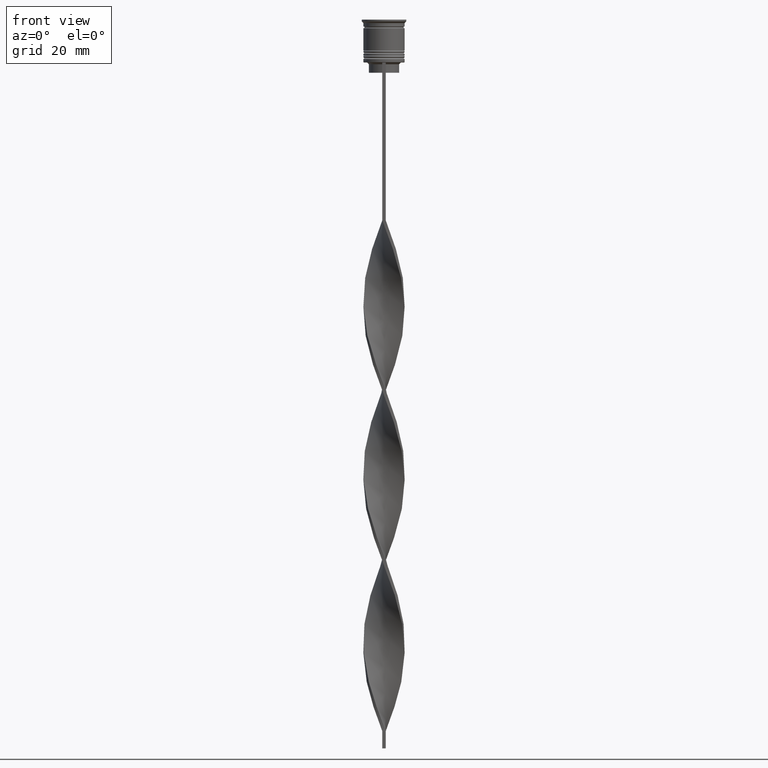
[diagram: clean part render]
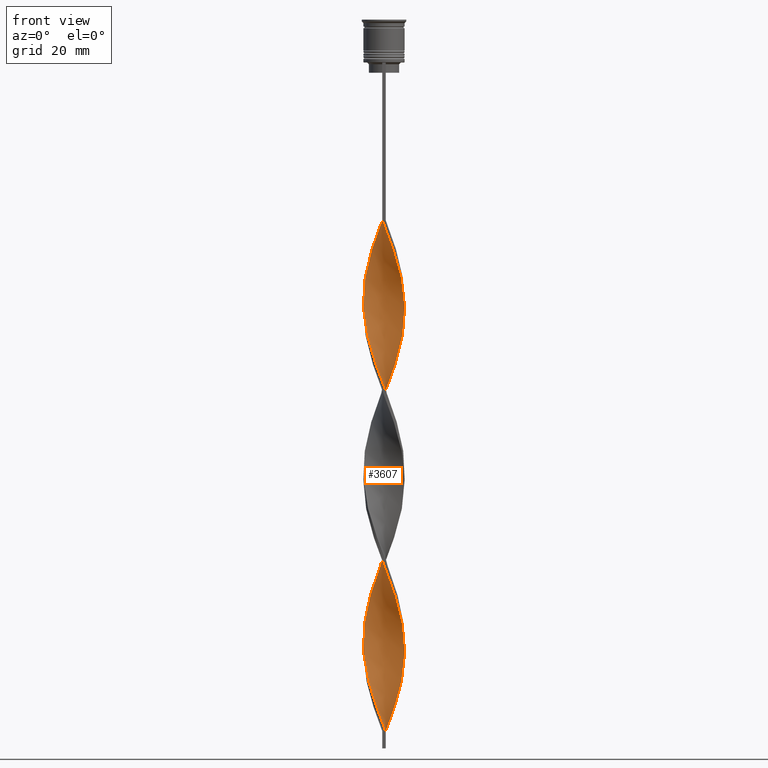
[diagram: same view with one face highlighted and labeled with its STEP entity id]
A machine part, front view. The second image highlights one B-rep face of the part: STEP entity #3607.
In plain terms, the highlighted face is a freeform B-spline surface patch.
Its self-contained STEP definition (entity closure, byte-faithful):
#9 = CARTESIAN_POINT ( 'NONE',  ( 5.089420681871065888, 3.216799204635418352, -192.8921568627450824 ) ) ;
#13 = CARTESIAN_POINT ( 'NONE',  ( -6.015373881509670007, 0.6136281867224266939, -80.41176470588234793 ) ) ;
#17 = CARTESIAN_POINT ( 'NONE',  ( 2.131985436030567893, 5.658259501511265555, -103.7843137254901933 ) ) ;
#25 = CARTESIAN_POINT ( 'NONE',  ( 5.593848926018643475, 2.226848488981698626, -189.9705882352941160 ) ) ;
#27 = CARTESIAN_POINT ( 'NONE',  ( -5.634122364000872629, -2.122890762018907029, -87.71568627450979250 ) ) ;
#30 = CARTESIAN_POINT ( 'NONE',  ( 4.411678320489673233, 4.097205681500676100, -96.48039215686274872 ) ) ;
#49 = CARTESIAN_POINT ( 'NONE',  ( -6.015373881509670007, -0.6136281867224278042, -135.9215686274509665 ) ) ;
#73 = CARTESIAN_POINT ( 'NONE',  ( 2.633686111825095377, 5.414212543332558525, -102.3235294117646959 ) ) ;
#89 = CARTESIAN_POINT ( 'NONE',  ( -4.032016302638260719, 4.506007880724164139, -68.72549019607842524 ) ) ;
#94 = CARTESIAN_POINT ( 'NONE',  ( -2.633686111825095821, -5.414212543332558525, -151.9901960784313530 ) ) ;
#96 = EDGE_LOOP ( 'NONE', ( #1922, #2255, #2614, #1376 ) ) ;
#109 = CARTESIAN_POINT ( 'NONE',  ( 5.437407565418680200, 2.644969083640990259, -138.8431372549019329 ) ) ;
#112 = CARTESIAN_POINT ( 'NONE',  ( 0.6110105570574714262, -5.989713357011694939, -61.42156862745097357 ) ) ;
#113 = CARTESIAN_POINT ( 'NONE',  ( 4.791340338341087524, 3.688403482277190282, -194.3529411764705799 ) ) ;
#128 = CARTESIAN_POINT ( 'NONE',  ( -4.858813575065529911, -3.599054477032530563, -191.4313725490196134 ) ) ;
#134 = CARTESIAN_POINT ( 'NONE',  ( 1.593983656741372767, 5.805963839195126042, -204.5784313725490335 ) ) ;
#152 = CARTESIAN_POINT ( 'NONE',  ( 5.800196826636242697, -1.708502050969749053, -127.1568627450980244 ) ) ;
#156 = CARTESIAN_POINT ( 'NONE',  ( 2.633686111825095377, 5.414212543332558525, -201.6568627450980387 ) ) ;
#170 = CARTESIAN_POINT ( 'NONE',  ( 5.593848926018644363, -2.226848488981697294, -125.6960784313725412 ) ) ;
#174 = CARTESIAN_POINT ( 'NONE',  ( 1.166039236662763656, -5.933094890902377294, -62.88235294117647101 ) ) ;
#175 = CARTESIAN_POINT ( 'NONE',  ( -3.583701545128941568, 4.838086732939006929, -67.26470588235292780 ) ) ;
#186 = CARTESIAN_POINT ( 'NONE',  ( 0.4999999999999990563, -6.000000000000000000, -108.1666666666666572 ) ) ;
#189 = CARTESIAN_POINT ( 'NONE',  ( -2.633686111825095821, -5.414212543332558525, -151.9901960784313530 ) ) ;
#191 = CARTESIAN_POINT ( 'NONE',  ( 4.032016302638259830, -4.506007880724165027, -118.3921568627451109 ) ) ;
#211 = CARTESIAN_POINT ( 'NONE',  ( 5.830837162583067723, -1.600812440396821357, -179.7450980392157476 ) ) ;
#212 = CARTESIAN_POINT ( 'NONE',  ( -4.411678320489672345, 4.097205681500676988, -169.5196078431372371 ) ) ;
#229 = CARTESIAN_POINT ( 'NONE',  ( -5.593848926018642587, -2.226848488981700402, -140.3039215686274588 ) ) ;
#230 = CARTESIAN_POINT ( 'NONE',  ( -2.236388528178717472, -5.617813528137046930, -200.1960784313725981 ) ) ;
#246 = CARTESIAN_POINT ( 'NONE',  ( 2.733484409399328019, -5.364518895816363653, -166.5980392156862706 ) ) ;
#247 = CARTESIAN_POINT ( 'NONE',  ( -5.437407565418680200, -2.644969083640991592, -188.5098039215686185 ) ) ;
#271 = CARTESIAN_POINT ( 'NONE',  ( 4.858813575065529911, -3.599054477032529675, -173.9019607843137294 ) ) ;
#272 = CARTESIAN_POINT ( 'NONE',  ( -1.593983656741372767, 5.805963839195126042, -160.7549019607842808 ) ) ;
#277 = CARTESIAN_POINT ( 'NONE',  ( 5.830837162583068611, -1.600812440396821357, -80.41176470588234793 ) ) ;
#289 = CARTESIAN_POINT ( 'NONE',  ( -5.089420681871065000, 3.216799204635419240, -172.4411764705882035 ) ) ;
#295 = CARTESIAN_POINT ( 'NONE',  ( 5.634122364000872629, -2.122890762018906141, -78.95098039215686470 ) ) ;
#309 = CARTESIAN_POINT ( 'NONE',  ( -4.791340338341085747, -3.688403482277191170, -144.6862745098039227 ) ) ;
#326 = CARTESIAN_POINT ( 'NONE',  ( -5.089420681871065000, 3.216799204635419240, -73.10784313725488914 ) ) ;
#330 = CARTESIAN_POINT ( 'NONE',  ( 2.733484409399328019, -5.364518895816363653, -166.5980392156862706 ) ) ;
#350 = CARTESIAN_POINT ( 'NONE',  ( -5.089420681871066776, -3.216799204635417464, -143.2254901960784537 ) ) ;
#361 = CARTESIAN_POINT ( 'NONE',  ( -0.4999999999999997780, -6.000000000000000000, -58.50000000000000000 ) ) ;
#365 = CARTESIAN_POINT ( 'NONE',  ( 3.672669403269014143, -4.770901325147232974, -169.5196078431372371 ) ) ;
#384 = CARTESIAN_POINT ( 'NONE',  ( -5.907785354072955464, 1.161065118846087207, -78.95098039215686470 ) ) ;
#391 = CARTESIAN_POINT ( 'NONE',  ( 5.593848926018643475, 2.226848488981698626, -90.63725490196078738 ) ) ;
#408 = CARTESIAN_POINT ( 'NONE',  ( -5.593848926018643475, 2.226848488981699070, -175.3627450980391984 ) ) ;
#412 = CARTESIAN_POINT ( 'NONE',  ( 5.387501025401044252, -2.745194926993650419, -124.2352941176470580 ) ) ;
#427 = CARTESIAN_POINT ( 'NONE',  ( 5.148110570242104167, 3.122011780336761966, -140.3039215686274588 ) ) ;
#430 = CARTESIAN_POINT ( 'NONE',  ( 0.05598187745217882844, -6.046331823121015248, -59.96078431372549034 ) ) ;
#431 = CARTESIAN_POINT ( 'NONE',  ( -6.015373881509669118, 0.6136281867224266939, -80.41176470588234793 ) ) ;
#446 = CARTESIAN_POINT ( 'NONE',  ( -3.583701545128941568, 4.838086732939006929, -166.5980392156862706 ) ) ;
#453 = CARTESIAN_POINT ( 'NONE',  ( 5.089420681871065888, 3.216799204635418352, -192.8921568627450824 ) ) ;
#466 = CARTESIAN_POINT ( 'NONE',  ( 6.015373881509670007, 0.6136281867224272490, -86.25490196078432348 ) ) ;
#472 = CARTESIAN_POINT ( 'NONE',  ( -6.015373881509670007, 0.6136281867224266939, -179.7450980392157476 ) ) ;
#476 = CARTESIAN_POINT ( 'NONE',  ( 4.032016302638261607, 4.506007880724164139, -197.2745098039215463 ) ) ;
#488 = CARTESIAN_POINT ( 'NONE',  ( 0.05598187745217871047, 6.046331823121017024, -156.3725490196078454 ) ) ;
#491 = CARTESIAN_POINT ( 'NONE',  ( 3.230580290619939898, -5.111224263495680376, -168.0588235294117680 ) ) ;
#492 = CARTESIAN_POINT ( 'NONE',  ( -4.032016302638261607, 4.506007880724164139, -68.72549019607842524 ) ) ;
#502 = EDGE_CURVE ( 'NONE', #2110, #1911, #2732, .T. ) ;
#506 = CARTESIAN_POINT ( 'NONE',  ( 4.114758515918087944, -4.430578386798787349, -170.9803921568627629 ) ) ;
#507 = CARTESIAN_POINT ( 'NONE',  ( -4.114758515918087944, -4.430578386798787349, -194.3529411764705799 ) ) ;
#529 = CARTESIAN_POINT ( 'NONE',  ( -5.928270878038556013, 1.051477244927328636, -131.5392156862745310 ) ) ;
#530 = CARTESIAN_POINT ( 'NONE',  ( -3.135386787619624638, 5.170165585153851495, -165.1372549019608016 ) ) ;
#546 = CARTESIAN_POINT ( 'NONE',  ( 3.583701545128941568, 4.838086732939006929, -99.40196078431372939 ) ) ;
#562 = CARTESIAN_POINT ( 'NONE',  ( -0.05598187745217925865, 6.046331823121015248, -109.6274509803921404 ) ) ;
#563 = CARTESIAN_POINT ( 'NONE',  ( -2.633686111825095377, 5.414212543332558525, -163.6764705882352757 ) ) ;
#569 = CARTESIAN_POINT ( 'NONE',  ( 4.486786045491808927, -4.014816431915657624, -73.10784313725488914 ) ) ;
#586 = CARTESIAN_POINT ( 'NONE',  ( 3.135386787619625526, 5.170165585153850607, -200.1960784313725696 ) ) ;
#587 = CARTESIAN_POINT ( 'NONE',  ( -0.6110105570574716483, -5.989713357011694939, -204.5784313725490335 ) ) ;
#592 = CARTESIAN_POINT ( 'NONE',  ( 0.05598187745217882844, -6.046331823121014359, -59.96078431372549744 ) ) ;
#607 = CARTESIAN_POINT ( 'NONE',  ( -5.437407565418680200, 2.644969083640992036, -127.1568627450980102 ) ) ;
#621 = CARTESIAN_POINT ( 'NONE',  ( 1.701213882420740120, -5.775454209519710780, -163.6764705882352757 ) ) ;
#638 = CARTESIAN_POINT ( 'NONE',  ( 0.5000000000000005551, 6.000000000000000000, -207.5000000000000000 ) ) ;
#642 = CARTESIAN_POINT ( 'NONE',  ( -3.583701545128941568, 4.838086732939006929, -67.26470588235292780 ) ) ;
#647 = CARTESIAN_POINT ( 'NONE',  ( -5.928270878038556013, 1.051477244927328636, -131.5392156862745310 ) ) ;
#664 = CARTESIAN_POINT ( 'NONE',  ( 5.089420681871065888, 3.216799204635418352, -93.55882352941176805 ) ) ;
#684 = CARTESIAN_POINT ( 'NONE',  ( -3.230580290619938566, 5.111224263495681264, -118.3921568627451109 ) ) ;
#710 = CARTESIAN_POINT ( 'NONE',  ( 5.800196826636242697, 1.708502050969748609, -89.17647058823528994 ) ) ;
#711 = CARTESIAN_POINT ( 'NONE',  ( 1.593983656741371657, -5.805963839195126042, -111.0882352941176379 ) ) ;
#726 = CARTESIAN_POINT ( 'NONE',  ( 1.701213882420740564, 5.775454209519710780, -151.9901960784313530 ) ) ;
#729 = CARTESIAN_POINT ( 'NONE',  ( 3.230580290619939898, -5.111224263495680376, -68.72549019607842524 ) ) ;
#730 = CARTESIAN_POINT ( 'NONE',  ( -5.089420681871065000, 3.216799204635419240, -73.10784313725488914 ) ) ;
#743 = CARTESIAN_POINT ( 'NONE',  ( 6.020539237501858487, -0.05574306863229442494, -131.5392156862745310 ) ) ;
#748 = CARTESIAN_POINT ( 'NONE',  ( -4.858813575065529911, -3.599054477032530563, -92.09803921568628482 ) ) ;
#763 = CARTESIAN_POINT ( 'NONE',  ( -0.6110105570574716483, -5.989713357011694939, -105.2450980392156765 ) ) ;
#768 = CARTESIAN_POINT ( 'NONE',  ( 2.131985436030567005, -5.658259501511265555, -112.5490196078431495 ) ) ;
#784 = CARTESIAN_POINT ( 'NONE',  ( 4.032016302638258942, -4.506007880724165027, -118.3921568627451109 ) ) ;
#787 = CARTESIAN_POINT ( 'NONE',  ( 6.015373881509670895, 0.6136281867224271380, -86.25490196078432348 ) ) ;
#788 = CARTESIAN_POINT ( 'NONE',  ( -4.114758515918087944, -4.430578386798787349, -95.01960784313725128 ) ) ;
#799 = CARTESIAN_POINT ( 'NONE',  ( -4.791340338341087524, 3.688403482277190282, -170.9803921568627629 ) ) ;
#802 = CARTESIAN_POINT ( 'NONE',  ( -6.015373881509670895, -0.6136281867224278042, -135.9215686274509665 ) ) ;
#803 = CARTESIAN_POINT ( 'NONE',  ( 6.025704593494046968, 0.5021420494578359150, -133.0000000000000000 ) ) ;
#818 = CARTESIAN_POINT ( 'NONE',  ( 5.593848926018643475, 2.226848488981698626, -90.63725490196078738 ) ) ;
#819 = CARTESIAN_POINT ( 'NONE',  ( 5.593848926018644363, -2.226848488981697294, -125.6960784313725412 ) ) ;
#841 = CARTESIAN_POINT ( 'NONE',  ( 0.4999999999999990563, -6.000000000000000000, -207.5000000000000000 ) ) ;
#843 = CARTESIAN_POINT ( 'NONE',  ( 0.05598187745217882844, -6.046331823121015248, -159.2941176470588118 ) ) ;
#844 = CARTESIAN_POINT ( 'NONE',  ( -0.4999999999999997780, 6.000000000000000000, -157.8333333333333144 ) ) ;
#849 = CARTESIAN_POINT ( 'NONE',  ( 3.230580290619939898, -5.111224263495680376, -68.72549019607842524 ) ) ;
#859 = CARTESIAN_POINT ( 'NONE',  ( -5.830837162583068611, 1.600812440396819580, -130.0784313725490335 ) ) ;
#877 = CARTESIAN_POINT ( 'NONE',  ( -4.858813575065529911, -3.599054477032530563, -191.4313725490196134 ) ) ;
#897 = CARTESIAN_POINT ( 'NONE',  ( -0.6110105570574716483, -5.989713357011694939, -204.5784313725490335 ) ) ;
#899 = CARTESIAN_POINT ( 'NONE',  ( 2.633686111825095377, 5.414212543332558525, -201.6568627450980387 ) ) ;
#914 = CARTESIAN_POINT ( 'NONE',  ( 5.907785354072955464, 1.161065118846088096, -187.0490196078431211 ) ) ;
#916 = CARTESIAN_POINT ( 'NONE',  ( -1.701213882420740120, -5.775454209519710780, -102.3235294117646959 ) ) ;
#919 = CARTESIAN_POINT ( 'NONE',  ( -5.830837162583068611, 1.600812440396819580, -130.0784313725490335 ) ) ;
#935 = CARTESIAN_POINT ( 'NONE',  ( -4.411678320489672345, 4.097205681500676988, -70.18627450980390847 ) ) ;
#938 = CARTESIAN_POINT ( 'NONE',  ( 3.583701545128941568, 4.838086732939006929, -99.40196078431372939 ) ) ;
#962 = CARTESIAN_POINT ( 'NONE',  ( -5.387501025401044252, -2.745194926993649087, -141.7647058823529562 ) ) ;
#979 = CARTESIAN_POINT ( 'NONE',  ( -2.633686111825095377, 5.414212543332558525, -64.34313725490196134 ) ) ;
#983 = CARTESIAN_POINT ( 'NONE',  ( -5.593848926018642587, -2.226848488981700402, -140.3039215686274588 ) ) ;
#984 =( BOUNDED_CURVE ( )  B_SPLINE_CURVE ( 2, ( #1939, #430, #112, #174, #1313, #1004, #1048, #729, #2552, #1588, #2869, #3085, #3758, #2507, #1028, #1373, #2568, #3487, #2487, #787, #3402, #710, #818, #1176, #3853, #3796, #1134, #1994, #546, #1686, #1105, #2013, #3516, #2326, #2050, #562, #1723, #2346, #3227, #2624, #2289, #2885, #3502, #1981, #2365, #2646, #3558, #2607, #1158, #859, #529, #3871, #2928, #802, #3262, #3540, #229, #1757, #3243, #2590, #3574, #1119, #2965, #3828, #189, #3206, #1742, #2911, #2305, #843, #1426, #3189, #2034, #2944, #246, #491, #1444, #506, #1391, #271, #1469, #2668, #1705, #211, #1412, #3810, #3889, #3041, #914, #3315, #25, #1499, #9, #1780, #2144, #3334, #2696, #586, #899, #2461, #2382, #1540, #638 ),
 .UNSPECIFIED., .F., .T. ) 
 B_SPLINE_CURVE_WITH_KNOTS ( ( 3, 2, 2, 2, 2, 2, 2, 2, 2, 2, 2, 2, 2, 2, 2, 2, 2, 2, 2, 2, 2, 2, 2, 2, 2, 2, 2, 2, 2, 2, 2, 2, 2, 2, 2, 2, 2, 2, 2, 2, 2, 2, 2, 2, 2, 2, 2, 2, 2, 2, 2, 3 ),
 ( 0.000000000000000000, 0.01470588235294117453, 0.02941176470588234906, 0.04411764705882353227, 0.05882352941176469813, 0.07352941176470588480, 0.08823529411764706454, 0.1029411764705882443, 0.1176470588235293963, 0.1323529411764705899, 0.1470588235294117696, 0.1617647058823529493, 0.1764705882352941291, 0.1911764705882352811, 0.2058823529411764885, 0.2205882352941176405, 0.2352941176470587925, 0.2500000000000000000, 0.2647058823529411797, 0.2794117647058823595, 0.2941176470588235392, 0.3088235294117647189, 0.3235294117647058987, 0.3382352941176470229, 0.3529411764705882582, 0.3676470588235294379, 0.3823529411764705621, 0.3970588235294117418, 0.4117647058823529771, 0.4264705882352941013, 0.4411764705882352811, 0.4558823529411764608, 0.4705882352941175850, 0.4852941176470588203, 0.5000000000000000000, 0.5147058823529411242, 0.5294117647058823595, 0.5441176470588234837, 0.5588235294117647189, 0.5735294117647058432, 0.5882352941176470784, 0.6029411764705882026, 0.6176470588235294379, 0.6323529411764705621, 0.6470588235294117974, 0.6617647058823529216, 0.6764705882352940458, 0.6911764705882351700, 0.7058823529411765163, 0.7205882352941176405, 0.7352941176470588758, 0.7500000000000000000 ),
 .UNSPECIFIED. ) 
 CURVE ( )  GEOMETRIC_REPRESENTATION_ITEM ( )  RATIONAL_B_SPLINE_CURVE ( ( 1.000000000000000000, 0.9957341762950344677, 1.000000000000000000, 0.9957341762950344677, 1.000000000000000000, 0.9957341762950344677, 1.000000000000000000, 0.9957341762950344677, 1.000000000000000000, 0.9957341762950344677, 1.000000000000000000, 0.9957341762950344677, 1.000000000000000000, 0.9957341762950344677, 1.000000000000000000, 0.9957341762950344677, 1.000000000000000000, 0.9957341762950344677, 1.000000000000000000, 0.9957341762950344677, 1.000000000000000000, 0.9957341762950344677, 1.000000000000000000, 0.9957341762950344677, 1.000000000000000000, 0.9957341762950344677, 1.000000000000000000, 0.9957341762950344677, 1.000000000000000000, 0.9957341762950344677, 1.000000000000000000, 0.9957341762950344677, 1.000000000000000000, 0.9957341762950344677, 1.000000000000000000, 0.9957341762950344677, 1.000000000000000000, 0.9957341762950344677, 1.000000000000000000, 0.9957341762950344677, 1.000000000000000000, 0.9957341762950344677, 1.000000000000000000, 0.9957341762950344677, 1.000000000000000000, 0.9957341762950344677, 1.000000000000000000, 0.9957341762950344677, 1.000000000000000000, 0.9957341762950344677, 1.000000000000000000, 0.9957341762950344677, 1.000000000000000000, 0.9957341762950344677, 1.000000000000000000, 0.9957341762950344677, 1.000000000000000000, 0.9957341762950344677, 1.000000000000000000, 0.9957341762950344677, 1.000000000000000000, 0.9957341762950344677, 1.000000000000000000, 0.9957341762950344677, 1.000000000000000000, 0.9957341762950344677, 1.000000000000000000, 0.9957341762950344677, 1.000000000000000000, 0.9957341762950344677, 1.000000000000000000, 0.9957341762950344677, 1.000000000000000000, 0.9957341762950344677, 1.000000000000000000, 0.9957341762950344677, 1.000000000000000000, 0.9957341762950344677, 1.000000000000000000, 0.9957341762950344677, 1.000000000000000000, 0.9957341762950344677, 1.000000000000000000, 0.9957341762950344677, 1.000000000000000000, 0.9957341762950344677, 1.000000000000000000, 0.9957341762950344677, 1.000000000000000000, 0.9957341762950344677, 1.000000000000000000, 0.9957341762950344677, 1.000000000000000000, 0.9957341762950344677, 1.000000000000000000, 0.9957341762950344677, 1.000000000000000000, 0.9957341762950344677, 1.000000000000000000, 0.9957341762950344677, 1.000000000000000000, 0.9957341762950344677, 1.000000000000000000 ) ) 
 REPRESENTATION_ITEM ( '' )  );
#1001 = CARTESIAN_POINT ( 'NONE',  ( -4.486786045491809816, -4.014816431915657624, -93.55882352941176805 ) ) ;
#1004 = CARTESIAN_POINT ( 'NONE',  ( 2.236388528178716140, -5.617813528137046930, -65.80392156862745878 ) ) ;
#1005 = CARTESIAN_POINT ( 'NONE',  ( 5.089420681871065000, -3.216799204635420129, -122.7745098039215605 ) ) ;
#1023 = CARTESIAN_POINT ( 'NONE',  ( 4.114758515918086168, 4.430578386798788237, -144.6862745098039227 ) ) ;
#1028 = CARTESIAN_POINT ( 'NONE',  ( 5.634122364000872629, -2.122890762018906141, -78.95098039215686470 ) ) ;
#1029 = CARTESIAN_POINT ( 'NONE',  ( -1.055981877452178086, 5.953668176878986529, -59.96078431372549744 ) ) ;
#1044 = CARTESIAN_POINT ( 'NONE',  ( 6.015373881509670895, -0.6136281867224248066, -130.0784313725490335 ) ) ;
#1048 = CARTESIAN_POINT ( 'NONE',  ( 2.733484409399328019, -5.364518895816363653, -67.26470588235292780 ) ) ;
#1049 = CARTESIAN_POINT ( 'NONE',  ( 3.583701545128941568, 4.838086732939006929, -198.7352941176470722 ) ) ;
#1062 = CARTESIAN_POINT ( 'NONE',  ( -4.032016302638260719, 4.506007880724164139, -168.0588235294117680 ) ) ;
#1067 = CARTESIAN_POINT ( 'NONE',  ( 5.593848926018643475, 2.226848488981698626, -189.9705882352941160 ) ) ;
#1080 = CARTESIAN_POINT ( 'NONE',  ( 2.733484409399330239, 5.364518895816361876, -149.0686274509803866 ) ) ;
#1086 = CARTESIAN_POINT ( 'NONE',  ( -5.148110570242105055, -3.122011780336760189, -90.63725490196078738 ) ) ;
#1094 = VECTOR ( 'NONE', #2416, 1000.000000000000000 ) ;
#1101 = CARTESIAN_POINT ( 'NONE',  ( 2.236388528178715251, 5.617813528137046042, -150.5294117647058840 ) ) ;
#1105 = CARTESIAN_POINT ( 'NONE',  ( 2.633686111825095377, 5.414212543332558525, -102.3235294117646959 ) ) ;
#1106 = CARTESIAN_POINT ( 'NONE',  ( -2.131985436030567005, 5.658259501511265555, -162.2156862745098351 ) ) ;
#1119 = CARTESIAN_POINT ( 'NONE',  ( -4.032016302638261607, -4.506007880724164139, -147.6078431372548891 ) ) ;
#1120 = CARTESIAN_POINT ( 'NONE',  ( 5.148110570242104167, 3.122011780336761966, -140.3039215686274588 ) ) ;
#1134 = CARTESIAN_POINT ( 'NONE',  ( 4.411678320489673233, 4.097205681500676100, -96.48039215686274872 ) ) ;
#1135 = CARTESIAN_POINT ( 'NONE',  ( 3.230580290619941231, 5.111224263495680376, -147.6078431372548891 ) ) ;
#1143 = CARTESIAN_POINT ( 'NONE',  ( 1.701213882420740120, -5.775454209519710780, -64.34313725490196134 ) ) ;
#1158 = CARTESIAN_POINT ( 'NONE',  ( -5.634122364000872629, 2.122890762018908362, -128.6176470588235361 ) ) ;
#1159 = CARTESIAN_POINT ( 'NONE',  ( 0.05598187745217871047, 6.046331823121016136, -156.3725490196078454 ) ) ;
#1165 = CARTESIAN_POINT ( 'NONE',  ( 3.672669403269014143, -4.770901325147232974, -70.18627450980390847 ) ) ;
#1176 = CARTESIAN_POINT ( 'NONE',  ( 5.387501025401044252, 2.745194926993649975, -92.09803921568628482 ) ) ;
#1177 = CARTESIAN_POINT ( 'NONE',  ( -5.634122364000872629, -2.122890762018907029, -187.0490196078431211 ) ) ;
#1214 = CARTESIAN_POINT ( 'NONE',  ( -2.236388528178717028, -5.617813528137046042, -100.8627450980392126 ) ) ;
#1217 = CARTESIAN_POINT ( 'NONE',  ( -0.6110105570574700939, 5.989713357011694939, -111.0882352941176379 ) ) ;
#1229 = CARTESIAN_POINT ( 'NONE',  ( -4.858813575065529911, -3.599054477032530563, -92.09803921568628482 ) ) ;
#1232 = CARTESIAN_POINT ( 'NONE',  ( -0.4999999999999997780, -6.000000000000000000, -157.8333333333333144 ) ) ;
#1250 = CARTESIAN_POINT ( 'NONE',  ( 1.593983656741372767, 5.805963839195126042, -105.2450980392156765 ) ) ;
#1256 = CARTESIAN_POINT ( 'NONE',  ( 0.4999999999999995559, -2.000000000000000000, -207.5000000000000000 ) ) ;
#1273 = CARTESIAN_POINT ( 'NONE',  ( -1.055981877452178308, 5.953668176878985641, -59.96078431372549034 ) ) ;
#1278 = CARTESIAN_POINT ( 'NONE',  ( 4.032016302638261607, 4.506007880724164139, -97.94117647058824616 ) ) ;
#1292 = CARTESIAN_POINT ( 'NONE',  ( -5.148110570242105055, -3.122011780336760189, -90.63725490196078738 ) ) ;
#1296 = CARTESIAN_POINT ( 'NONE',  ( 3.135386787619625526, 5.170165585153850607, -100.8627450980392126 ) ) ;
#1310 = CARTESIAN_POINT ( 'NONE',  ( 6.025704593494046968, 0.5021420494578359150, -133.0000000000000000 ) ) ;
#1313 = CARTESIAN_POINT ( 'NONE',  ( 1.701213882420740120, -5.775454209519710780, -64.34313725490196134 ) ) ;
#1314 = CARTESIAN_POINT ( 'NONE',  ( 4.411678320489673233, 4.097205681500676100, -195.8137254901960773 ) ) ;
#1332 = CARTESIAN_POINT ( 'NONE',  ( -4.486786045491809816, -4.014816431915657624, -192.8921568627450824 ) ) ;
#1338 = CARTESIAN_POINT ( 'NONE',  ( -5.928270878038556013, -1.051477244927328192, -84.79411764705882604 ) ) ;
#1354 = CARTESIAN_POINT ( 'NONE',  ( -4.411678320489672345, 4.097205681500676988, -169.5196078431372371 ) ) ;
#1358 = CARTESIAN_POINT ( 'NONE',  ( -0.05598187745217796107, -6.046331823121016136, -106.7058823529412024 ) ) ;
#1370 = CARTESIAN_POINT ( 'NONE',  ( -5.830837162583066835, -1.600812440396821801, -185.5882352941176237 ) ) ;
#1373 = CARTESIAN_POINT ( 'NONE',  ( 5.830837162583067723, -1.600812440396821357, -80.41176470588234793 ) ) ;
#1374 = CARTESIAN_POINT ( 'NONE',  ( -6.025704593494046968, -0.5021420494578366922, -83.33333333333332860 ) ) ;
#1376 = ORIENTED_EDGE ( 'NONE', *, *, #3194, .F. ) ;
#1386 = CARTESIAN_POINT ( 'NONE',  ( 4.791340338341086635, -3.688403482277189394, -121.3137254901960773 ) ) ;
#1391 = CARTESIAN_POINT ( 'NONE',  ( 4.486786045491808927, -4.014816431915657624, -172.4411764705882035 ) ) ;
#1393 = CARTESIAN_POINT ( 'NONE',  ( -4.486786045491809816, -4.014816431915657624, -93.55882352941176805 ) ) ;
#1409 = CARTESIAN_POINT ( 'NONE',  ( -2.236388528178717028, -5.617813528137046042, -200.1960784313725696 ) ) ;
#1412 = CARTESIAN_POINT ( 'NONE',  ( 5.928270878038556013, -1.051477244927329080, -181.2058823529411598 ) ) ;
#1413 = CARTESIAN_POINT ( 'NONE',  ( 0.6110105570574696499, 5.989713357011694939, -154.9117647058823479 ) ) ;
#1423 = CARTESIAN_POINT ( 'NONE',  ( -2.733484409399328019, -5.364518895816363653, -198.7352941176470722 ) ) ;
#1426 = CARTESIAN_POINT ( 'NONE',  ( 0.6110105570574714262, -5.989713357011694939, -160.7549019607842808 ) ) ;
#1427 = CARTESIAN_POINT ( 'NONE',  ( -5.148110570242105055, -3.122011780336760189, -189.9705882352941160 ) ) ;
#1444 = CARTESIAN_POINT ( 'NONE',  ( 3.672669403269014143, -4.770901325147232974, -169.5196078431372371 ) ) ;
#1445 = CARTESIAN_POINT ( 'NONE',  ( 5.907785354072955464, -1.161065118846089428, -128.6176470588235361 ) ) ;
#1469 = CARTESIAN_POINT ( 'NONE',  ( 5.148110570242105055, -3.122011780336760634, -175.3627450980391984 ) ) ;
#1470 = CARTESIAN_POINT ( 'NONE',  ( -5.593848926018643475, 2.226848488981699070, -175.3627450980391984 ) ) ;
#1481 = CARTESIAN_POINT ( 'NONE',  ( -1.166039236662764988, -5.933094890902377294, -203.1176470588235361 ) ) ;
#1485 = CARTESIAN_POINT ( 'NONE',  ( -3.672669403269015032, -4.770901325147232086, -195.8137254901960773 ) ) ;
#1499 = CARTESIAN_POINT ( 'NONE',  ( 5.387501025401044252, 2.745194926993649975, -191.4313725490196134 ) ) ;
#1505 = CARTESIAN_POINT ( 'NONE',  ( -2.131985436030568781, -5.658259501511264666, -153.4509803921568789 ) ) ;
#1528 = CARTESIAN_POINT ( 'NONE',  ( 5.634122364000872629, -2.122890762018906141, -178.2843137254901933 ) ) ;
#1540 = CARTESIAN_POINT ( 'NONE',  ( 1.055981877452177864, 5.953668176878987417, -206.0392156862745026 ) ) ;
#1545 = CARTESIAN_POINT ( 'NONE',  ( -1.593983656741371213, -5.805963839195126042, -154.9117647058823479 ) ) ;
#1565 = CARTESIAN_POINT ( 'NONE',  ( 4.114758515918087944, -4.430578386798787349, -170.9803921568627629 ) ) ;
#1581 = CARTESIAN_POINT ( 'NONE',  ( 0.5000000000000005551, 6.000000000000000000, -207.5000000000000000 ) ) ;
#1585 = CARTESIAN_POINT ( 'NONE',  ( -6.020539237501858487, 0.05574306863229507719, -81.87254901960783116 ) ) ;
#1588 = CARTESIAN_POINT ( 'NONE',  ( 4.114758515918087944, -4.430578386798787349, -71.64705882352942012 ) ) ;
#1589 = CARTESIAN_POINT ( 'NONE',  ( 5.148110570242105055, -3.122011780336760634, -175.3627450980391984 ) ) ;
#1604 = CARTESIAN_POINT ( 'NONE',  ( -5.800196826636242697, 1.708502050969749497, -176.8235294117647243 ) ) ;
#1609 = CARTESIAN_POINT ( 'NONE',  ( -0.6110105570574716483, -5.989713357011694939, -105.2450980392156765 ) ) ;
#1624 = CARTESIAN_POINT ( 'NONE',  ( 1.166039236662765655, 5.933094890902376406, -153.4509803921568789 ) ) ;
#1628 = CARTESIAN_POINT ( 'NONE',  ( 2.131985436030567893, 5.658259501511265555, -203.1176470588235361 ) ) ;
#1646 = CARTESIAN_POINT ( 'NONE',  ( -1.593983656741372767, 5.805963839195126042, -160.7549019607842808 ) ) ;
#1651 = CARTESIAN_POINT ( 'NONE',  ( -1.593983656741372767, 5.805963839195126042, -61.42156862745097357 ) ) ;
#1660 = CARTESIAN_POINT ( 'NONE',  ( 5.907785354072955464, 1.161065118846088096, -87.71568627450979250 ) ) ;
#1667 = CARTESIAN_POINT ( 'NONE',  ( -3.230580290619939898, -5.111224263495680376, -197.2745098039215463 ) ) ;
#1671 = CARTESIAN_POINT ( 'NONE',  ( -2.131985436030567005, 5.658259501511265555, -62.88235294117647811 ) ) ;
#1683 = CARTESIAN_POINT ( 'NONE',  ( 5.928270878038556901, 1.051477244927326415, -134.4607843137254974 ) ) ;
#1686 = CARTESIAN_POINT ( 'NONE',  ( 3.135386787619625526, 5.170165585153850607, -100.8627450980392126 ) ) ;
#1687 = CARTESIAN_POINT ( 'NONE',  ( 3.583701545128942012, -4.838086732939006041, -116.9313725490195992 ) ) ;
#1705 = CARTESIAN_POINT ( 'NONE',  ( 5.634122364000872629, -2.122890762018906141, -178.2843137254901933 ) ) ;
#1708 = CARTESIAN_POINT ( 'NONE',  ( -5.830837162583067723, -1.600812440396821801, -185.5882352941176237 ) ) ;
#1723 = CARTESIAN_POINT ( 'NONE',  ( -0.6110105570574700939, 5.989713357011694939, -111.0882352941176379 ) ) ;
#1724 = CARTESIAN_POINT ( 'NONE',  ( -5.800196826636242697, 1.708502050969749497, -176.8235294117647243 ) ) ;
#1736 =( BOUNDED_SURFACE ( )  B_SPLINE_SURFACE ( 1, 2, ( 
 ( #2390, #592, #3835, #2353, #1143, #1766, #2918, #849, #1165, #3268, #569, #1786, #2988, #2972, #295, #277, #2687, #3878, #3895, #466, #1660, #2096, #391, #3695, #664, #3026, #30, #1278, #938, #1296, #73, #17, #1250, #2109, #1856, #1800, #1217, #2124, #3632, #2443, #2169, #684, #1837, #2468, #3342, #2743, #2406, #607, #3046, #919, #647, #3656, #3618, #49, #1814, #1874, #983, #962, #350, #309, #3003, #2150, #3321, #3086, #94, #1505, #1545, #3676, #1232, #3382, #3362, #2705, #621, #3066, #330, #2423, #365, #1565, #3306, #2762, #1589, #2788, #1528, #2488, #2725, #3403, #1965, #2570, #3717, #3173, #1067, #2218, #453, #113, #1314, #476, #1049, #3448, #156, #1628, #134, #1901, #2277 ),
 ( #3129, #1029, #1651, #1671, #3464, #2870, #175, #492, #2508, #3429, #730, #3776, #2188, #3148, #2235, #431, #3488, #1374, #1338, #2851, #3742, #2886, #1086, #748, #1393, #788, #3759, #2553, #1940, #1921, #1982, #2826, #1609, #1358, #2534, #2254, #711, #768, #2808, #3190, #1687, #191, #3109, #2591, #1005, #412, #819, #2608, #1445, #3229, #3829, #803, #2348, #2069, #1781, #2366, #1120, #3854, #2966, #3797, #2051, #1135, #2929, #3575, #2015, #1743, #1413, #1159, #844, #2035, #272, #1106, #563, #530, #2912, #1995, #212, #2290, #289, #1758, #1470, #1724, #2669, #3873, #2328, #2983, #3541, #1708, #1177, #247, #1427, #877, #3559, #507, #1485, #3503, #3207, #230, #3284, #3244, #587, #3811, #2306 ) ),
 .UNSPECIFIED., .F., .F., .F. ) 
 B_SPLINE_SURFACE_WITH_KNOTS ( ( 2, 2 ),
 ( 3, 2, 2, 2, 2, 2, 2, 2, 2, 2, 2, 2, 2, 2, 2, 2, 2, 2, 2, 2, 2, 2, 2, 2, 2, 2, 2, 2, 2, 2, 2, 2, 2, 2, 2, 2, 2, 2, 2, 2, 2, 2, 2, 2, 2, 2, 2, 2, 2, 2, 2, 3 ),
 ( 0.000000000000000000, 1.000000000000000000 ),
 ( 0.000000000000000000, 0.01470588235294117627, 0.02941176470588235253, 0.04411764705882353227, 0.05882352941176470507, 0.07352941176470588480, 0.08823529411764706454, 0.1029411764705882304, 0.1176470588235294101, 0.1323529411764705899, 0.1470588235294117696, 0.1617647058823529493, 0.1764705882352941291, 0.1911764705882352811, 0.2058823529411764608, 0.2205882352941176405, 0.2352941176470588203, 0.2500000000000000000, 0.2647058823529411797, 0.2794117647058823595, 0.2941176470588235392, 0.3088235294117647189, 0.3235294117647058987, 0.3382352941176470784, 0.3529411764705882582, 0.3676470588235294379, 0.3823529411764705621, 0.3970588235294117418, 0.4117647058823529216, 0.4264705882352941013, 0.4411764705882352811, 0.4558823529411764608, 0.4705882352941176405, 0.4852941176470588203, 0.5000000000000000000, 0.5147058823529411242, 0.5294117647058823595, 0.5441176470588234837, 0.5588235294117647189, 0.5735294117647058432, 0.5882352941176470784, 0.6029411764705882026, 0.6176470588235294379, 0.6323529411764705621, 0.6470588235294117974, 0.6617647058823529216, 0.6764705882352941568, 0.6911764705882352811, 0.7058823529411765163, 0.7205882352941176405, 0.7352941176470588758, 0.7500000000000000000 ),
 .UNSPECIFIED. ) 
 GEOMETRIC_REPRESENTATION_ITEM ( )  RATIONAL_B_SPLINE_SURFACE ( (
 ( 1.000000000000000000, 0.9957341762950344677, 1.000000000000000000, 0.9957341762950344677, 1.000000000000000000, 0.9957341762950344677, 1.000000000000000000, 0.9957341762950344677, 1.000000000000000000, 0.9957341762950344677, 1.000000000000000000, 0.9957341762950344677, 1.000000000000000000, 0.9957341762950344677, 1.000000000000000000, 0.9957341762950344677, 1.000000000000000000, 0.9957341762950344677, 1.000000000000000000, 0.9957341762950344677, 1.000000000000000000, 0.9957341762950344677, 1.000000000000000000, 0.9957341762950344677, 1.000000000000000000, 0.9957341762950344677, 1.000000000000000000, 0.9957341762950344677, 1.000000000000000000, 0.9957341762950344677, 1.000000000000000000, 0.9957341762950344677, 1.000000000000000000, 0.9957341762950344677, 1.000000000000000000, 0.9957341762950344677, 1.000000000000000000, 0.9957341762950344677, 1.000000000000000000, 0.9957341762950344677, 1.000000000000000000, 0.9957341762950344677, 1.000000000000000000, 0.9957341762950344677, 1.000000000000000000, 0.9957341762950344677, 1.000000000000000000, 0.9957341762950344677, 1.000000000000000000, 0.9957341762950344677, 1.000000000000000000, 0.9957341762950344677, 1.000000000000000000, 0.9957341762950344677, 1.000000000000000000, 0.9957341762950344677, 1.000000000000000000, 0.9957341762950344677, 1.000000000000000000, 0.9957341762950344677, 1.000000000000000000, 0.9957341762950344677, 1.000000000000000000, 0.9957341762950344677, 1.000000000000000000, 0.9957341762950344677, 1.000000000000000000, 0.9957341762950344677, 1.000000000000000000, 0.9957341762950344677, 1.000000000000000000, 0.9957341762950344677, 1.000000000000000000, 0.9957341762950344677, 1.000000000000000000, 0.9957341762950344677, 1.000000000000000000, 0.9957341762950344677, 1.000000000000000000, 0.9957341762950344677, 1.000000000000000000, 0.9957341762950344677, 1.000000000000000000, 0.9957341762950344677, 1.000000000000000000, 0.9957341762950344677, 1.000000000000000000, 0.9957341762950344677, 1.000000000000000000, 0.9957341762950344677, 1.000000000000000000, 0.9957341762950344677, 1.000000000000000000, 0.9957341762950344677, 1.000000000000000000, 0.9957341762950344677, 1.000000000000000000, 0.9957341762950344677, 1.000000000000000000, 0.9957341762950344677, 1.000000000000000000, 0.9957341762950344677, 1.000000000000000000),
 ( 1.000000000000000000, 0.9957341762950344677, 1.000000000000000000, 0.9957341762950344677, 1.000000000000000000, 0.9957341762950344677, 1.000000000000000000, 0.9957341762950344677, 1.000000000000000000, 0.9957341762950344677, 1.000000000000000000, 0.9957341762950344677, 1.000000000000000000, 0.9957341762950344677, 1.000000000000000000, 0.9957341762950344677, 1.000000000000000000, 0.9957341762950344677, 1.000000000000000000, 0.9957341762950344677, 1.000000000000000000, 0.9957341762950344677, 1.000000000000000000, 0.9957341762950344677, 1.000000000000000000, 0.9957341762950344677, 1.000000000000000000, 0.9957341762950344677, 1.000000000000000000, 0.9957341762950344677, 1.000000000000000000, 0.9957341762950344677, 1.000000000000000000, 0.9957341762950344677, 1.000000000000000000, 0.9957341762950344677, 1.000000000000000000, 0.9957341762950344677, 1.000000000000000000, 0.9957341762950344677, 1.000000000000000000, 0.9957341762950344677, 1.000000000000000000, 0.9957341762950344677, 1.000000000000000000, 0.9957341762950344677, 1.000000000000000000, 0.9957341762950344677, 1.000000000000000000, 0.9957341762950344677, 1.000000000000000000, 0.9957341762950344677, 1.000000000000000000, 0.9957341762950344677, 1.000000000000000000, 0.9957341762950344677, 1.000000000000000000, 0.9957341762950344677, 1.000000000000000000, 0.9957341762950344677, 1.000000000000000000, 0.9957341762950344677, 1.000000000000000000, 0.9957341762950344677, 1.000000000000000000, 0.9957341762950344677, 1.000000000000000000, 0.9957341762950344677, 1.000000000000000000, 0.9957341762950344677, 1.000000000000000000, 0.9957341762950344677, 1.000000000000000000, 0.9957341762950344677, 1.000000000000000000, 0.9957341762950344677, 1.000000000000000000, 0.9957341762950344677, 1.000000000000000000, 0.9957341762950344677, 1.000000000000000000, 0.9957341762950344677, 1.000000000000000000, 0.9957341762950344677, 1.000000000000000000, 0.9957341762950344677, 1.000000000000000000, 0.9957341762950344677, 1.000000000000000000, 0.9957341762950344677, 1.000000000000000000, 0.9957341762950344677, 1.000000000000000000, 0.9957341762950344677, 1.000000000000000000, 0.9957341762950344677, 1.000000000000000000, 0.9957341762950344677, 1.000000000000000000, 0.9957341762950344677, 1.000000000000000000, 0.9957341762950344677, 1.000000000000000000) ) ) 
 REPRESENTATION_ITEM ( '' )  SURFACE ( )  );
#1742 = CARTESIAN_POINT ( 'NONE',  ( -1.593983656741371213, -5.805963839195126042, -154.9117647058823479 ) ) ;
#1743 = CARTESIAN_POINT ( 'NONE',  ( 1.166039236662765655, 5.933094890902375518, -153.4509803921568789 ) ) ;
#1754 = CARTESIAN_POINT ( 'NONE',  ( -0.05598187745217796107, -6.046331823121017024, -206.0392156862745026 ) ) ;
#1757 = CARTESIAN_POINT ( 'NONE',  ( -5.387501025401044252, -2.745194926993649087, -141.7647058823529562 ) ) ;
#1758 = CARTESIAN_POINT ( 'NONE',  ( -5.387501025401044252, 2.745194926993649087, -173.9019607843137294 ) ) ;
#1766 = CARTESIAN_POINT ( 'NONE',  ( 2.236388528178716584, -5.617813528137047818, -65.80392156862747299 ) ) ;
#1780 = CARTESIAN_POINT ( 'NONE',  ( 4.791340338341087524, 3.688403482277190282, -194.3529411764705799 ) ) ;
#1781 = CARTESIAN_POINT ( 'NONE',  ( 5.634122364000872629, 2.122890762018906141, -137.3823529411764639 ) ) ;
#1786 = CARTESIAN_POINT ( 'NONE',  ( 4.858813575065529911, -3.599054477032529675, -74.56862745098038658 ) ) ;
#1800 = CARTESIAN_POINT ( 'NONE',  ( -0.05598187745217925865, 6.046331823121014359, -109.6274509803921546 ) ) ;
#1810 = CARTESIAN_POINT ( 'NONE',  ( -5.928270878038556013, -1.051477244927328192, -84.79411764705882604 ) ) ;
#1814 = CARTESIAN_POINT ( 'NONE',  ( -5.907785354072955464, -1.161065118846087207, -137.3823529411764639 ) ) ;
#1837 = CARTESIAN_POINT ( 'NONE',  ( -3.672669403269014143, 4.770901325147232974, -119.8529411764705799 ) ) ;
#1856 = CARTESIAN_POINT ( 'NONE',  ( 0.5000000000000005551, 6.000000000000000000, -108.1666666666666572 ) ) ;
#1867 = LINE ( 'NONE', #361, #1094 ) ;
#1874 = CARTESIAN_POINT ( 'NONE',  ( -5.800196826636242697, -1.708502050969747277, -138.8431372549019045 ) ) ;
#1896 = CARTESIAN_POINT ( 'NONE',  ( -3.230580290619939898, -5.111224263495680376, -97.94117647058824616 ) ) ;
#1901 = CARTESIAN_POINT ( 'NONE',  ( 1.055981877452177642, 5.953668176878988305, -206.0392156862745026 ) ) ;
#1911 = VERTEX_POINT ( 'NONE', #841 ) ;
#1916 = CARTESIAN_POINT ( 'NONE',  ( 4.486786045491810704, 4.014816431915656736, -143.2254901960784537 ) ) ;
#1921 = CARTESIAN_POINT ( 'NONE',  ( -2.236388528178717472, -5.617813528137046930, -100.8627450980392126 ) ) ;
#1922 = ORIENTED_EDGE ( 'NONE', *, *, #2072, .T. ) ;
#1936 = CARTESIAN_POINT ( 'NONE',  ( -0.4999999999999997780, 6.000000000000000000, -157.8333333333333144 ) ) ;
#1939 = CARTESIAN_POINT ( 'NONE',  ( -0.4999999999999997780, -6.000000000000000000, -58.50000000000000000 ) ) ;
#1940 = CARTESIAN_POINT ( 'NONE',  ( -2.733484409399328019, -5.364518895816363653, -99.40196078431372939 ) ) ;
#1959 = CARTESIAN_POINT ( 'NONE',  ( -6.020539237501858487, 0.05574306863229507719, -181.2058823529411598 ) ) ;
#1965 = CARTESIAN_POINT ( 'NONE',  ( 6.020539237501858487, 0.05574306863229420983, -184.1274509803921546 ) ) ;
#1978 = CARTESIAN_POINT ( 'NONE',  ( 5.387501025401044252, -2.745194926993650419, -124.2352941176470580 ) ) ;
#1981 = CARTESIAN_POINT ( 'NONE',  ( -4.114758515918088833, 4.430578386798786461, -121.3137254901960773 ) ) ;
#1982 = CARTESIAN_POINT ( 'NONE',  ( -1.701213882420740120, -5.775454209519710780, -102.3235294117646959 ) ) ;
#1991 = CARTESIAN_POINT ( 'NONE',  ( 4.858813575065529911, 3.599054477032529675, -141.7647058823529562 ) ) ;
#1994 = CARTESIAN_POINT ( 'NONE',  ( 4.032016302638260719, 4.506007880724164139, -97.94117647058824616 ) ) ;
#1995 = CARTESIAN_POINT ( 'NONE',  ( -4.032016302638261607, 4.506007880724164139, -168.0588235294117680 ) ) ;
#2013 = CARTESIAN_POINT ( 'NONE',  ( 2.131985436030567893, 5.658259501511266443, -103.7843137254901791 ) ) ;
#2015 = CARTESIAN_POINT ( 'NONE',  ( 1.701213882420740564, 5.775454209519710780, -151.9901960784313530 ) ) ;
#2034 = CARTESIAN_POINT ( 'NONE',  ( 1.701213882420740120, -5.775454209519710780, -163.6764705882352757 ) ) ;
#2035 = CARTESIAN_POINT ( 'NONE',  ( -1.055981877452178086, 5.953668176878986529, -159.2941176470588118 ) ) ;
#2050 = CARTESIAN_POINT ( 'NONE',  ( 0.5000000000000005551, 6.000000000000000000, -108.1666666666666572 ) ) ;
#2051 = CARTESIAN_POINT ( 'NONE',  ( 3.672669403269013255, 4.770901325147232974, -146.1470588235294201 ) ) ;
#2069 = CARTESIAN_POINT ( 'NONE',  ( 5.830837162583067723, 1.600812440396822467, -135.9215686274509665 ) ) ;
#2072 = EDGE_CURVE ( 'NONE', #3068, #2110, #1867, .T. ) ;
#2096 = CARTESIAN_POINT ( 'NONE',  ( 5.800196826636242697, 1.708502050969748609, -89.17647058823527573 ) ) ;
#2106 = CARTESIAN_POINT ( 'NONE',  ( -1.166039236662764988, -5.933094890902377294, -103.7843137254901791 ) ) ;
#2108 = CARTESIAN_POINT ( 'NONE',  ( -0.4999999999999997780, -6.000000000000000000, -58.50000000000000000 ) ) ;
#2109 = CARTESIAN_POINT ( 'NONE',  ( 1.055981877452177642, 5.953668176878988305, -106.7058823529412024 ) ) ;
#2110 = VERTEX_POINT ( 'NONE', #3314 ) ;
#2114 = CARTESIAN_POINT ( 'NONE',  ( 0.5000000000000005551, 6.000000000000000000, -207.5000000000000000 ) ) ;
#2121 = CARTESIAN_POINT ( 'NONE',  ( -4.114758515918087944, -4.430578386798787349, -95.01960784313726549 ) ) ;
#2124 = CARTESIAN_POINT ( 'NONE',  ( -1.166039236662763656, 5.933094890902376406, -112.5490196078431495 ) ) ;
#2144 = CARTESIAN_POINT ( 'NONE',  ( 4.411678320489673233, 4.097205681500676100, -195.8137254901960773 ) ) ;
#2146 = CARTESIAN_POINT ( 'NONE',  ( -5.593848926018643475, 2.226848488981699070, -76.02941176470586981 ) ) ;
#2150 = CARTESIAN_POINT ( 'NONE',  ( -4.032016302638262495, -4.506007880724164139, -147.6078431372548891 ) ) ;
#2165 = CARTESIAN_POINT ( 'NONE',  ( -5.800196826636242697, 1.708502050969749497, -77.49019607843136725 ) ) ;
#2169 = CARTESIAN_POINT ( 'NONE',  ( -2.733484409399328463, 5.364518895816362765, -116.9313725490195992 ) ) ;
#2184 = CARTESIAN_POINT ( 'NONE',  ( -3.672669403269015032, -4.770901325147232086, -96.48039215686274872 ) ) ;
#2188 = CARTESIAN_POINT ( 'NONE',  ( -5.593848926018643475, 2.226848488981699070, -76.02941176470586981 ) ) ;
#2214 = CARTESIAN_POINT ( 'NONE',  ( -5.928270878038556013, -1.051477244927328192, -184.1274509803921546 ) ) ;
#2218 = CARTESIAN_POINT ( 'NONE',  ( 5.387501025401044252, 2.745194926993649975, -191.4313725490196134 ) ) ;
#2231 = CARTESIAN_POINT ( 'NONE',  ( 5.634122364000872629, 2.122890762018906141, -137.3823529411764639 ) ) ;
#2235 = CARTESIAN_POINT ( 'NONE',  ( -5.907785354072955464, 1.161065118846087207, -78.95098039215686470 ) ) ;
#2249 = CARTESIAN_POINT ( 'NONE',  ( 3.672669403269013255, 4.770901325147232974, -146.1470588235294201 ) ) ;
#2254 = CARTESIAN_POINT ( 'NONE',  ( 1.055981877452178530, -5.953668176878986529, -109.6274509803921546 ) ) ;
#2255 = ORIENTED_EDGE ( 'NONE', *, *, #502, .T. ) ;
#2271 = CARTESIAN_POINT ( 'NONE',  ( 3.583701545128942012, -4.838086732939006041, -116.9313725490195992 ) ) ;
#2277 = CARTESIAN_POINT ( 'NONE',  ( 0.5000000000000005551, 6.000000000000000000, -207.5000000000000000 ) ) ;
#2286 = CARTESIAN_POINT ( 'NONE',  ( 1.055981877452178752, -5.953668176878985641, -109.6274509803921404 ) ) ;
#2289 = CARTESIAN_POINT ( 'NONE',  ( -2.733484409399328463, 5.364518895816362765, -116.9313725490195992 ) ) ;
#2290 = CARTESIAN_POINT ( 'NONE',  ( -4.791340338341087524, 3.688403482277190282, -170.9803921568627629 ) ) ;
#2305 = CARTESIAN_POINT ( 'NONE',  ( -0.4999999999999997780, -6.000000000000000000, -157.8333333333333144 ) ) ;
#2306 = CARTESIAN_POINT ( 'NONE',  ( 0.4999999999999990563, -6.000000000000000000, -207.5000000000000000 ) ) ;
#2326 = CARTESIAN_POINT ( 'NONE',  ( 1.055981877452177864, 5.953668176878987417, -106.7058823529411882 ) ) ;
#2328 = CARTESIAN_POINT ( 'NONE',  ( -6.020539237501858487, 0.05574306863229507719, -181.2058823529411598 ) ) ;
#2346 = CARTESIAN_POINT ( 'NONE',  ( -1.166039236662763656, 5.933094890902377294, -112.5490196078431495 ) ) ;
#2348 = CARTESIAN_POINT ( 'NONE',  ( 5.928270878038556901, 1.051477244927326415, -134.4607843137254974 ) ) ;
#2353 = CARTESIAN_POINT ( 'NONE',  ( 1.166039236662763656, -5.933094890902376406, -62.88235294117647811 ) ) ;
#2365 = CARTESIAN_POINT ( 'NONE',  ( -4.486786045491808927, 4.014816431915658512, -122.7745098039215605 ) ) ;
#2366 = CARTESIAN_POINT ( 'NONE',  ( 5.437407565418680200, 2.644969083640990259, -138.8431372549019045 ) ) ;
#2382 = CARTESIAN_POINT ( 'NONE',  ( 1.593983656741372767, 5.805963839195126042, -204.5784313725490335 ) ) ;
#2390 = CARTESIAN_POINT ( 'NONE',  ( -0.4999999999999997780, -6.000000000000000000, -58.50000000000000000 ) ) ;
#2403 = CARTESIAN_POINT ( 'NONE',  ( -5.830837162583066835, -1.600812440396821801, -86.25490196078432348 ) ) ;
#2406 = CARTESIAN_POINT ( 'NONE',  ( -5.148110570242105943, 3.122011780336759745, -125.6960784313725412 ) ) ;
#2413 = EDGE_CURVE ( 'NONE', #3217, #1911, #3888, .T. ) ;
#2416 = DIRECTION ( 'NONE',  ( 0.000000000000000000, 1.000000000000000000, 0.000000000000000000 ) ) ;
#2420 = CARTESIAN_POINT ( 'NONE',  ( -6.025704593494046968, -0.5021420494578366922, -83.33333333333332860 ) ) ;
#2423 = CARTESIAN_POINT ( 'NONE',  ( 3.230580290619939898, -5.111224263495680376, -168.0588235294117680 ) ) ;
#2443 = CARTESIAN_POINT ( 'NONE',  ( -2.236388528178716140, 5.617813528137046930, -115.4705882352940876 ) ) ;
#2453 = CARTESIAN_POINT ( 'NONE',  ( 0.4999999999999990563, -6.000000000000000000, -207.5000000000000000 ) ) ;
#2461 = CARTESIAN_POINT ( 'NONE',  ( 2.131985436030567893, 5.658259501511266443, -203.1176470588235361 ) ) ;
#2463 = CARTESIAN_POINT ( 'NONE',  ( -5.387501025401044252, 2.745194926993649087, -74.56862745098038658 ) ) ;
#2468 = CARTESIAN_POINT ( 'NONE',  ( -4.114758515918088833, 4.430578386798786461, -121.3137254901960631 ) ) ;
#2487 = CARTESIAN_POINT ( 'NONE',  ( 6.020539237501858487, 0.05574306863229420983, -84.79411764705882604 ) ) ;
#2488 = CARTESIAN_POINT ( 'NONE',  ( 5.830837162583068611, -1.600812440396821357, -179.7450980392157192 ) ) ;
#2504 = CARTESIAN_POINT ( 'NONE',  ( -6.025704593494046968, -0.5021420494578366922, -182.6666666666666856 ) ) ;
#2507 = CARTESIAN_POINT ( 'NONE',  ( 5.437407565418680200, -2.644969083640992480, -77.49019607843136725 ) ) ;
#2508 = CARTESIAN_POINT ( 'NONE',  ( -4.411678320489672345, 4.097205681500676988, -70.18627450980390847 ) ) ;
#2530 = CARTESIAN_POINT ( 'NONE',  ( -2.131985436030567005, 5.658259501511266443, -162.2156862745098351 ) ) ;
#2534 = CARTESIAN_POINT ( 'NONE',  ( 0.4999999999999990563, -6.000000000000000000, -108.1666666666666572 ) ) ;
#2548 = CARTESIAN_POINT ( 'NONE',  ( -5.387501025401044252, 2.745194926993649087, -173.9019607843137294 ) ) ;
#2552 = CARTESIAN_POINT ( 'NONE',  ( 3.672669403269014143, -4.770901325147232974, -70.18627450980390847 ) ) ;
#2553 = CARTESIAN_POINT ( 'NONE',  ( -3.230580290619939898, -5.111224263495680376, -97.94117647058824616 ) ) ;
#2565 = CARTESIAN_POINT ( 'NONE',  ( -5.148110570242105055, -3.122011780336760189, -189.9705882352941160 ) ) ;
#2568 = CARTESIAN_POINT ( 'NONE',  ( 5.928270878038556013, -1.051477244927329080, -81.87254901960783116 ) ) ;
#2570 = CARTESIAN_POINT ( 'NONE',  ( 6.015373881509670007, 0.6136281867224272490, -185.5882352941176237 ) ) ;
#2585 = CARTESIAN_POINT ( 'NONE',  ( -5.089420681871065000, 3.216799204635419240, -172.4411764705882035 ) ) ;
#2590 = CARTESIAN_POINT ( 'NONE',  ( -4.791340338341085747, -3.688403482277191170, -144.6862745098039227 ) ) ;
#2591 = CARTESIAN_POINT ( 'NONE',  ( 4.791340338341086635, -3.688403482277189394, -121.3137254901960631 ) ) ;
#2607 = CARTESIAN_POINT ( 'NONE',  ( -5.437407565418680200, 2.644969083640992036, -127.1568627450980244 ) ) ;
#2608 = CARTESIAN_POINT ( 'NONE',  ( 5.800196826636242697, -1.708502050969749053, -127.1568627450980102 ) ) ;
#2614 = ORIENTED_EDGE ( 'NONE', *, *, #2413, .F. ) ;
#2624 = CARTESIAN_POINT ( 'NONE',  ( -2.236388528178715696, 5.617813528137046042, -115.4705882352941018 ) ) ;
#2630 = FACE_OUTER_BOUND ( 'NONE', #96, .T. ) ;
#2646 = CARTESIAN_POINT ( 'NONE',  ( -4.858813575065529911, 3.599054477032531008, -124.2352941176470580 ) ) ;
#2668 = CARTESIAN_POINT ( 'NONE',  ( 5.437407565418680200, -2.644969083640992480, -176.8235294117647243 ) ) ;
#2669 = CARTESIAN_POINT ( 'NONE',  ( -5.907785354072955464, 1.161065118846087207, -178.2843137254901933 ) ) ;
#2680 = CARTESIAN_POINT ( 'NONE',  ( 0.4999999999999990563, -6.000000000000000000, -207.5000000000000000 ) ) ;
#2687 = CARTESIAN_POINT ( 'NONE',  ( 5.928270878038556013, -1.051477244927329080, -81.87254901960783116 ) ) ;
#2696 = CARTESIAN_POINT ( 'NONE',  ( 3.583701545128941568, 4.838086732939006929, -198.7352941176470722 ) ) ;
#2700 = CARTESIAN_POINT ( 'NONE',  ( -2.131985436030567005, 5.658259501511266443, -62.88235294117647101 ) ) ;
#2705 = CARTESIAN_POINT ( 'NONE',  ( 1.166039236662763656, -5.933094890902376406, -162.2156862745098351 ) ) ;
#2722 = CARTESIAN_POINT ( 'NONE',  ( -0.4999999999999997780, 6.000000000000000888, -58.50000000000000000 ) ) ;
#2725 = CARTESIAN_POINT ( 'NONE',  ( 5.928270878038556013, -1.051477244927329080, -181.2058823529411598 ) ) ;
#2730 = CARTESIAN_POINT ( 'NONE',  ( 0.5000000000000000000, 2.000000000000000000, -207.5000000000000000 ) ) ;
#2732 =( BOUNDED_CURVE ( )  B_SPLINE_CURVE ( 2, ( #2722, #1273, #3081, #2700, #979, #3651, #642, #89, #935, #3063, #326, #2463, #2146, #2165, #384, #13, #1585, #2420, #1810, #2403, #27, #2783, #1292, #1229, #1001, #2121, #2184, #1896, #3105, #1214, #916, #2106, #763, #3425, #186, #2286, #3711, #3755, #3483, #3443, #2271, #784, #2847, #1386, #3793, #1978, #170, #152, #3460, #1044, #743, #1310, #1683, #2866, #2231, #109, #427, #1991, #1916, #1023, #2249, #3771, #1080, #1101, #726, #1624, #3499, #488, #1936, #3144, #1646, #2530, #2882, #3185, #446, #1062, #1354, #799, #2585, #2548, #408, #1604, #2804, #472, #1959, #2504, #2214, #1370, #3124, #2822, #2565, #128, #1332, #3738, #3169, #1667, #1423, #1409, #3203, #1481, #897, #1754, #2680 ),
 .UNSPECIFIED., .F., .T. ) 
 B_SPLINE_CURVE_WITH_KNOTS ( ( 3, 2, 2, 2, 2, 2, 2, 2, 2, 2, 2, 2, 2, 2, 2, 2, 2, 2, 2, 2, 2, 2, 2, 2, 2, 2, 2, 2, 2, 2, 2, 2, 2, 2, 2, 2, 2, 2, 2, 2, 2, 2, 2, 2, 2, 2, 2, 2, 2, 2, 2, 3 ),
 ( 0.000000000000000000, 0.01470588235294117453, 0.02941176470588234906, 0.04411764705882353227, 0.05882352941176469813, 0.07352941176470588480, 0.08823529411764706454, 0.1029411764705882443, 0.1176470588235293963, 0.1323529411764705899, 0.1470588235294117696, 0.1617647058823529493, 0.1764705882352941291, 0.1911764705882352811, 0.2058823529411764885, 0.2205882352941176405, 0.2352941176470587925, 0.2500000000000000000, 0.2647058823529411797, 0.2794117647058823595, 0.2941176470588235392, 0.3088235294117647189, 0.3235294117647058987, 0.3382352941176470229, 0.3529411764705882582, 0.3676470588235294379, 0.3823529411764705621, 0.3970588235294117418, 0.4117647058823529771, 0.4264705882352941013, 0.4411764705882352811, 0.4558823529411764608, 0.4705882352941175850, 0.4852941176470588203, 0.5000000000000000000, 0.5147058823529411242, 0.5294117647058823595, 0.5441176470588234837, 0.5588235294117647189, 0.5735294117647058432, 0.5882352941176470784, 0.6029411764705882026, 0.6176470588235294379, 0.6323529411764705621, 0.6470588235294117974, 0.6617647058823529216, 0.6764705882352940458, 0.6911764705882351700, 0.7058823529411765163, 0.7205882352941176405, 0.7352941176470588758, 0.7500000000000000000 ),
 .UNSPECIFIED. ) 
 CURVE ( )  GEOMETRIC_REPRESENTATION_ITEM ( )  RATIONAL_B_SPLINE_CURVE ( ( 1.000000000000000000, 0.9957341762950344677, 1.000000000000000000, 0.9957341762950344677, 1.000000000000000000, 0.9957341762950344677, 1.000000000000000000, 0.9957341762950344677, 1.000000000000000000, 0.9957341762950344677, 1.000000000000000000, 0.9957341762950344677, 1.000000000000000000, 0.9957341762950344677, 1.000000000000000000, 0.9957341762950344677, 1.000000000000000000, 0.9957341762950344677, 1.000000000000000000, 0.9957341762950344677, 1.000000000000000000, 0.9957341762950344677, 1.000000000000000000, 0.9957341762950344677, 1.000000000000000000, 0.9957341762950344677, 1.000000000000000000, 0.9957341762950344677, 1.000000000000000000, 0.9957341762950344677, 1.000000000000000000, 0.9957341762950344677, 1.000000000000000000, 0.9957341762950344677, 1.000000000000000000, 0.9957341762950344677, 1.000000000000000000, 0.9957341762950344677, 1.000000000000000000, 0.9957341762950344677, 1.000000000000000000, 0.9957341762950344677, 1.000000000000000000, 0.9957341762950344677, 1.000000000000000000, 0.9957341762950344677, 1.000000000000000000, 0.9957341762950344677, 1.000000000000000000, 0.9957341762950344677, 1.000000000000000000, 0.9957341762950344677, 1.000000000000000000, 0.9957341762950344677, 1.000000000000000000, 0.9957341762950344677, 1.000000000000000000, 0.9957341762950344677, 1.000000000000000000, 0.9957341762950344677, 1.000000000000000000, 0.9957341762950344677, 1.000000000000000000, 0.9957341762950344677, 1.000000000000000000, 0.9957341762950344677, 1.000000000000000000, 0.9957341762950344677, 1.000000000000000000, 0.9957341762950344677, 1.000000000000000000, 0.9957341762950344677, 1.000000000000000000, 0.9957341762950344677, 1.000000000000000000, 0.9957341762950344677, 1.000000000000000000, 0.9957341762950344677, 1.000000000000000000, 0.9957341762950344677, 1.000000000000000000, 0.9957341762950344677, 1.000000000000000000, 0.9957341762950344677, 1.000000000000000000, 0.9957341762950344677, 1.000000000000000000, 0.9957341762950344677, 1.000000000000000000, 0.9957341762950344677, 1.000000000000000000, 0.9957341762950344677, 1.000000000000000000, 0.9957341762950344677, 1.000000000000000000, 0.9957341762950344677, 1.000000000000000000, 0.9957341762950344677, 1.000000000000000000, 0.9957341762950344677, 1.000000000000000000, 0.9957341762950344677, 1.000000000000000000 ) ) 
 REPRESENTATION_ITEM ( '' )  );
#2743 = CARTESIAN_POINT ( 'NONE',  ( -4.858813575065529911, 3.599054477032531008, -124.2352941176470580 ) ) ;
#2762 = CARTESIAN_POINT ( 'NONE',  ( 4.858813575065529911, -3.599054477032529675, -173.9019607843137294 ) ) ;
#2783 = CARTESIAN_POINT ( 'NONE',  ( -5.437407565418680200, -2.644969083640991592, -89.17647058823528994 ) ) ;
#2788 = CARTESIAN_POINT ( 'NONE',  ( 5.437407565418680200, -2.644969083640992480, -176.8235294117647243 ) ) ;
#2804 = CARTESIAN_POINT ( 'NONE',  ( -5.907785354072955464, 1.161065118846087207, -178.2843137254901933 ) ) ;
#2808 = CARTESIAN_POINT ( 'NONE',  ( 2.633686111825096265, -5.414212543332558525, -114.0098039215686185 ) ) ;
#2822 = CARTESIAN_POINT ( 'NONE',  ( -5.437407565418680200, -2.644969083640991592, -188.5098039215686185 ) ) ;
#2826 = CARTESIAN_POINT ( 'NONE',  ( -1.166039236662764988, -5.933094890902376406, -103.7843137254901933 ) ) ;
#2847 = CARTESIAN_POINT ( 'NONE',  ( 4.411678320489672345, -4.097205681500676988, -119.8529411764705799 ) ) ;
#2851 = CARTESIAN_POINT ( 'NONE',  ( -5.830837162583067723, -1.600812440396821801, -86.25490196078432348 ) ) ;
#2866 = CARTESIAN_POINT ( 'NONE',  ( 5.830837162583066835, 1.600812440396822467, -135.9215686274509665 ) ) ;
#2869 = CARTESIAN_POINT ( 'NONE',  ( 4.486786045491808927, -4.014816431915657624, -73.10784313725488914 ) ) ;
#2870 = CARTESIAN_POINT ( 'NONE',  ( -3.135386787619624638, 5.170165585153851495, -65.80392156862747299 ) ) ;
#2882 = CARTESIAN_POINT ( 'NONE',  ( -2.633686111825095377, 5.414212543332558525, -163.6764705882352757 ) ) ;
#2885 = CARTESIAN_POINT ( 'NONE',  ( -3.230580290619938122, 5.111224263495681264, -118.3921568627451109 ) ) ;
#2886 = CARTESIAN_POINT ( 'NONE',  ( -5.437407565418680200, -2.644969083640991592, -89.17647058823527573 ) ) ;
#2911 = CARTESIAN_POINT ( 'NONE',  ( -1.055981877452178530, -5.953668176878987417, -156.3725490196078454 ) ) ;
#2912 = CARTESIAN_POINT ( 'NONE',  ( -3.583701545128941568, 4.838086732939006929, -166.5980392156862706 ) ) ;
#2918 = CARTESIAN_POINT ( 'NONE',  ( 2.733484409399328019, -5.364518895816363653, -67.26470588235292780 ) ) ;
#2928 = CARTESIAN_POINT ( 'NONE',  ( -6.020539237501857599, -0.05574306863229214898, -134.4607843137254974 ) ) ;
#2929 = CARTESIAN_POINT ( 'NONE',  ( 2.733484409399330239, 5.364518895816361876, -149.0686274509803866 ) ) ;
#2944 = CARTESIAN_POINT ( 'NONE',  ( 2.236388528178716140, -5.617813528137046930, -165.1372549019608016 ) ) ;
#2965 = CARTESIAN_POINT ( 'NONE',  ( -3.583701545128944232, -4.838086732939006041, -149.0686274509803866 ) ) ;
#2966 = CARTESIAN_POINT ( 'NONE',  ( 4.486786045491810704, 4.014816431915656736, -143.2254901960784537 ) ) ;
#2972 = CARTESIAN_POINT ( 'NONE',  ( 5.437407565418680200, -2.644969083640992480, -77.49019607843138147 ) ) ;
#2983 = CARTESIAN_POINT ( 'NONE',  ( -6.025704593494046968, -0.5021420494578366922, -182.6666666666666572 ) ) ;
#2988 = CARTESIAN_POINT ( 'NONE',  ( 5.148110570242105055, -3.122011780336760634, -76.02941176470586981 ) ) ;
#3003 = CARTESIAN_POINT ( 'NONE',  ( -4.411678320489671457, -4.097205681500676988, -146.1470588235294201 ) ) ;
#3026 = CARTESIAN_POINT ( 'NONE',  ( 4.791340338341087524, 3.688403482277190282, -95.01960784313725128 ) ) ;
#3041 = CARTESIAN_POINT ( 'NONE',  ( 6.015373881509670895, 0.6136281867224271380, -185.5882352941176237 ) ) ;
#3046 = CARTESIAN_POINT ( 'NONE',  ( -5.634122364000872629, 2.122890762018908362, -128.6176470588235361 ) ) ;
#3063 = CARTESIAN_POINT ( 'NONE',  ( -4.791340338341087524, 3.688403482277190282, -71.64705882352942012 ) ) ;
#3066 = CARTESIAN_POINT ( 'NONE',  ( 2.236388528178716584, -5.617813528137047818, -165.1372549019608016 ) ) ;
#3068 = VERTEX_POINT ( 'NONE', #2108 ) ;
#3081 = CARTESIAN_POINT ( 'NONE',  ( -1.593983656741372767, 5.805963839195126042, -61.42156862745097357 ) ) ;
#3085 = CARTESIAN_POINT ( 'NONE',  ( 4.858813575065529911, -3.599054477032529675, -74.56862745098038658 ) ) ;
#3086 = CARTESIAN_POINT ( 'NONE',  ( -3.135386787619623750, -5.170165585153852383, -150.5294117647058840 ) ) ;
#3105 = CARTESIAN_POINT ( 'NONE',  ( -2.733484409399328019, -5.364518895816363653, -99.40196078431372939 ) ) ;
#3109 = CARTESIAN_POINT ( 'NONE',  ( 4.411678320489672345, -4.097205681500676988, -119.8529411764705799 ) ) ;
#3124 = CARTESIAN_POINT ( 'NONE',  ( -5.634122364000872629, -2.122890762018907029, -187.0490196078431211 ) ) ;
#3129 = CARTESIAN_POINT ( 'NONE',  ( -0.4999999999999997780, 6.000000000000000000, -58.50000000000000000 ) ) ;
#3144 = CARTESIAN_POINT ( 'NONE',  ( -1.055981877452178308, 5.953668176878985641, -159.2941176470588118 ) ) ;
#3148 = CARTESIAN_POINT ( 'NONE',  ( -5.800196826636242697, 1.708502050969749497, -77.49019607843138147 ) ) ;
#3169 = CARTESIAN_POINT ( 'NONE',  ( -3.672669403269015032, -4.770901325147232086, -195.8137254901960773 ) ) ;
#3173 = CARTESIAN_POINT ( 'NONE',  ( 5.800196826636242697, 1.708502050969748609, -188.5098039215686185 ) ) ;
#3185 = CARTESIAN_POINT ( 'NONE',  ( -3.135386787619624638, 5.170165585153851495, -165.1372549019608016 ) ) ;
#3189 = CARTESIAN_POINT ( 'NONE',  ( 1.166039236662763656, -5.933094890902377294, -162.2156862745098351 ) ) ;
#3190 = CARTESIAN_POINT ( 'NONE',  ( 3.135386787619624194, -5.170165585153852383, -115.4705882352940876 ) ) ;
#3194 = EDGE_CURVE ( 'NONE', #3068, #3217, #984, .T. ) ;
#3203 = CARTESIAN_POINT ( 'NONE',  ( -1.701213882420740120, -5.775454209519710780, -201.6568627450980387 ) ) ;
#3206 = CARTESIAN_POINT ( 'NONE',  ( -2.131985436030568781, -5.658259501511265555, -153.4509803921568789 ) ) ;
#3207 = CARTESIAN_POINT ( 'NONE',  ( -2.733484409399328019, -5.364518895816363653, -198.7352941176470722 ) ) ;
#3217 = VERTEX_POINT ( 'NONE', #1581 ) ;
#3227 = CARTESIAN_POINT ( 'NONE',  ( -1.701213882420741008, 5.775454209519710780, -114.0098039215686185 ) ) ;
#3229 = CARTESIAN_POINT ( 'NONE',  ( 6.015373881509670007, -0.6136281867224248066, -130.0784313725490335 ) ) ;
#3243 = CARTESIAN_POINT ( 'NONE',  ( -5.089420681871066776, -3.216799204635417464, -143.2254901960784537 ) ) ;
#3244 = CARTESIAN_POINT ( 'NONE',  ( -1.166039236662764988, -5.933094890902376406, -203.1176470588235361 ) ) ;
#3262 = CARTESIAN_POINT ( 'NONE',  ( -5.907785354072955464, -1.161065118846087207, -137.3823529411764639 ) ) ;
#3268 = CARTESIAN_POINT ( 'NONE',  ( 4.114758515918087944, -4.430578386798787349, -71.64705882352943433 ) ) ;
#3284 = CARTESIAN_POINT ( 'NONE',  ( -1.701213882420740120, -5.775454209519710780, -201.6568627450980387 ) ) ;
#3306 = CARTESIAN_POINT ( 'NONE',  ( 4.486786045491808927, -4.014816431915657624, -172.4411764705882035 ) ) ;
#3314 = CARTESIAN_POINT ( 'NONE',  ( -0.4999999999999997780, 6.000000000000000888, -58.50000000000000000 ) ) ;
#3315 = CARTESIAN_POINT ( 'NONE',  ( 5.800196826636242697, 1.708502050969748609, -188.5098039215686185 ) ) ;
#3321 = CARTESIAN_POINT ( 'NONE',  ( -3.583701545128944232, -4.838086732939006041, -149.0686274509803866 ) ) ;
#3334 = CARTESIAN_POINT ( 'NONE',  ( 4.032016302638260719, 4.506007880724164139, -197.2745098039215463 ) ) ;
#3342 = CARTESIAN_POINT ( 'NONE',  ( -4.486786045491808927, 4.014816431915658512, -122.7745098039215605 ) ) ;
#3362 = CARTESIAN_POINT ( 'NONE',  ( 0.6110105570574714262, -5.989713357011694939, -160.7549019607842808 ) ) ;
#3382 = CARTESIAN_POINT ( 'NONE',  ( 0.05598187745217882844, -6.046331823121014359, -159.2941176470588118 ) ) ;
#3402 = CARTESIAN_POINT ( 'NONE',  ( 5.907785354072955464, 1.161065118846088096, -87.71568627450979250 ) ) ;
#3403 = CARTESIAN_POINT ( 'NONE',  ( 6.025704593494046968, -0.5021420494578373583, -182.6666666666666572 ) ) ;
#3425 = CARTESIAN_POINT ( 'NONE',  ( -0.05598187745217796107, -6.046331823121017024, -106.7058823529411882 ) ) ;
#3429 = CARTESIAN_POINT ( 'NONE',  ( -4.791340338341087524, 3.688403482277190282, -71.64705882352943433 ) ) ;
#3443 = CARTESIAN_POINT ( 'NONE',  ( 3.135386787619624194, -5.170165585153852383, -115.4705882352941018 ) ) ;
#3448 = CARTESIAN_POINT ( 'NONE',  ( 3.135386787619625526, 5.170165585153850607, -200.1960784313725981 ) ) ;
#3460 = CARTESIAN_POINT ( 'NONE',  ( 5.907785354072955464, -1.161065118846089428, -128.6176470588235361 ) ) ;
#3464 = CARTESIAN_POINT ( 'NONE',  ( -2.633686111825095377, 5.414212543332558525, -64.34313725490196134 ) ) ;
#3483 = CARTESIAN_POINT ( 'NONE',  ( 2.633686111825096265, -5.414212543332558525, -114.0098039215686185 ) ) ;
#3487 = CARTESIAN_POINT ( 'NONE',  ( 6.025704593494046968, -0.5021420494578373583, -83.33333333333332860 ) ) ;
#3488 = CARTESIAN_POINT ( 'NONE',  ( -6.020539237501858487, 0.05574306863229507719, -81.87254901960783116 ) ) ;
#3499 = CARTESIAN_POINT ( 'NONE',  ( 0.6110105570574696499, 5.989713357011694939, -154.9117647058823479 ) ) ;
#3502 = CARTESIAN_POINT ( 'NONE',  ( -3.672669403269014143, 4.770901325147232974, -119.8529411764705799 ) ) ;
#3503 = CARTESIAN_POINT ( 'NONE',  ( -3.230580290619939898, -5.111224263495680376, -197.2745098039215463 ) ) ;
#3516 = CARTESIAN_POINT ( 'NONE',  ( 1.593983656741372767, 5.805963839195126042, -105.2450980392156765 ) ) ;
#3540 = CARTESIAN_POINT ( 'NONE',  ( -5.800196826636242697, -1.708502050969747277, -138.8431372549019329 ) ) ;
#3541 = CARTESIAN_POINT ( 'NONE',  ( -5.928270878038556013, -1.051477244927328192, -184.1274509803921546 ) ) ;
#3558 = CARTESIAN_POINT ( 'NONE',  ( -5.148110570242105943, 3.122011780336759745, -125.6960784313725412 ) ) ;
#3559 = CARTESIAN_POINT ( 'NONE',  ( -4.486786045491809816, -4.014816431915657624, -192.8921568627450824 ) ) ;
#3574 = CARTESIAN_POINT ( 'NONE',  ( -4.411678320489671457, -4.097205681500676988, -146.1470588235294201 ) ) ;
#3575 = CARTESIAN_POINT ( 'NONE',  ( 2.236388528178715696, 5.617813528137046930, -150.5294117647058840 ) ) ;
#3607 = ADVANCED_FACE ( 'NONE', ( #2630 ), #1736, .T. ) ;
#3618 = CARTESIAN_POINT ( 'NONE',  ( -6.020539237501857599, -0.05574306863229214898, -134.4607843137254974 ) ) ;
#3632 = CARTESIAN_POINT ( 'NONE',  ( -1.701213882420741008, 5.775454209519710780, -114.0098039215686185 ) ) ;
#3651 = CARTESIAN_POINT ( 'NONE',  ( -3.135386787619624638, 5.170165585153851495, -65.80392156862745878 ) ) ;
#3656 = CARTESIAN_POINT ( 'NONE',  ( -6.025704593494046968, 0.5021420494578381355, -133.0000000000000000 ) ) ;
#3676 = CARTESIAN_POINT ( 'NONE',  ( -1.055981877452178308, -5.953668176878988305, -156.3725490196078454 ) ) ;
#3695 = CARTESIAN_POINT ( 'NONE',  ( 5.387501025401044252, 2.745194926993649975, -92.09803921568628482 ) ) ;
#3711 = CARTESIAN_POINT ( 'NONE',  ( 1.593983656741371657, -5.805963839195126042, -111.0882352941176379 ) ) ;
#3717 = CARTESIAN_POINT ( 'NONE',  ( 5.907785354072955464, 1.161065118846088096, -187.0490196078431211 ) ) ;
#3738 = CARTESIAN_POINT ( 'NONE',  ( -4.114758515918087944, -4.430578386798787349, -194.3529411764705799 ) ) ;
#3742 = CARTESIAN_POINT ( 'NONE',  ( -5.634122364000872629, -2.122890762018907029, -87.71568627450979250 ) ) ;
#3755 = CARTESIAN_POINT ( 'NONE',  ( 2.131985436030567005, -5.658259501511266443, -112.5490196078431495 ) ) ;
#3758 = CARTESIAN_POINT ( 'NONE',  ( 5.148110570242105055, -3.122011780336760634, -76.02941176470586981 ) ) ;
#3759 = CARTESIAN_POINT ( 'NONE',  ( -3.672669403269015032, -4.770901325147232086, -96.48039215686274872 ) ) ;
#3771 = CARTESIAN_POINT ( 'NONE',  ( 3.230580290619941231, 5.111224263495680376, -147.6078431372548891 ) ) ;
#3776 = CARTESIAN_POINT ( 'NONE',  ( -5.387501025401044252, 2.745194926993649087, -74.56862745098038658 ) ) ;
#3793 = CARTESIAN_POINT ( 'NONE',  ( 5.089420681871065000, -3.216799204635420129, -122.7745098039215605 ) ) ;
#3796 = CARTESIAN_POINT ( 'NONE',  ( 4.791340338341087524, 3.688403482277190282, -95.01960784313726549 ) ) ;
#3797 = CARTESIAN_POINT ( 'NONE',  ( 4.114758515918086168, 4.430578386798788237, -144.6862745098039227 ) ) ;
#3810 = CARTESIAN_POINT ( 'NONE',  ( 6.025704593494046968, -0.5021420494578373583, -182.6666666666666856 ) ) ;
#3811 = CARTESIAN_POINT ( 'NONE',  ( -0.05598187745217796107, -6.046331823121016136, -206.0392156862745026 ) ) ;
#3828 = CARTESIAN_POINT ( 'NONE',  ( -3.135386787619623750, -5.170165585153852383, -150.5294117647058840 ) ) ;
#3829 = CARTESIAN_POINT ( 'NONE',  ( 6.020539237501858487, -0.05574306863229442494, -131.5392156862745310 ) ) ;
#3835 = CARTESIAN_POINT ( 'NONE',  ( 0.6110105570574714262, -5.989713357011694939, -61.42156862745097357 ) ) ;
#3853 = CARTESIAN_POINT ( 'NONE',  ( 5.089420681871065888, 3.216799204635418352, -93.55882352941176805 ) ) ;
#3854 = CARTESIAN_POINT ( 'NONE',  ( 4.858813575065529911, 3.599054477032529675, -141.7647058823529562 ) ) ;
#3871 = CARTESIAN_POINT ( 'NONE',  ( -6.025704593494046968, 0.5021420494578381355, -133.0000000000000000 ) ) ;
#3873 = CARTESIAN_POINT ( 'NONE',  ( -6.015373881509669118, 0.6136281867224266939, -179.7450980392157192 ) ) ;
#3878 = CARTESIAN_POINT ( 'NONE',  ( 6.025704593494046968, -0.5021420494578373583, -83.33333333333332860 ) ) ;
#3888 = B_SPLINE_CURVE_WITH_KNOTS ( 'NONE', 3,
 ( #2114, #2730, #1256, #2453 ),
 .UNSPECIFIED., .F., .F.,
 ( 4, 4 ),
 ( 0.000000000000000000, 1.000000000000000000 ),
 .UNSPECIFIED. ) ;
#3889 = CARTESIAN_POINT ( 'NONE',  ( 6.020539237501858487, 0.05574306863229420983, -184.1274509803921546 ) ) ;
#3895 = CARTESIAN_POINT ( 'NONE',  ( 6.020539237501858487, 0.05574306863229420983, -84.79411764705882604 ) ) ;